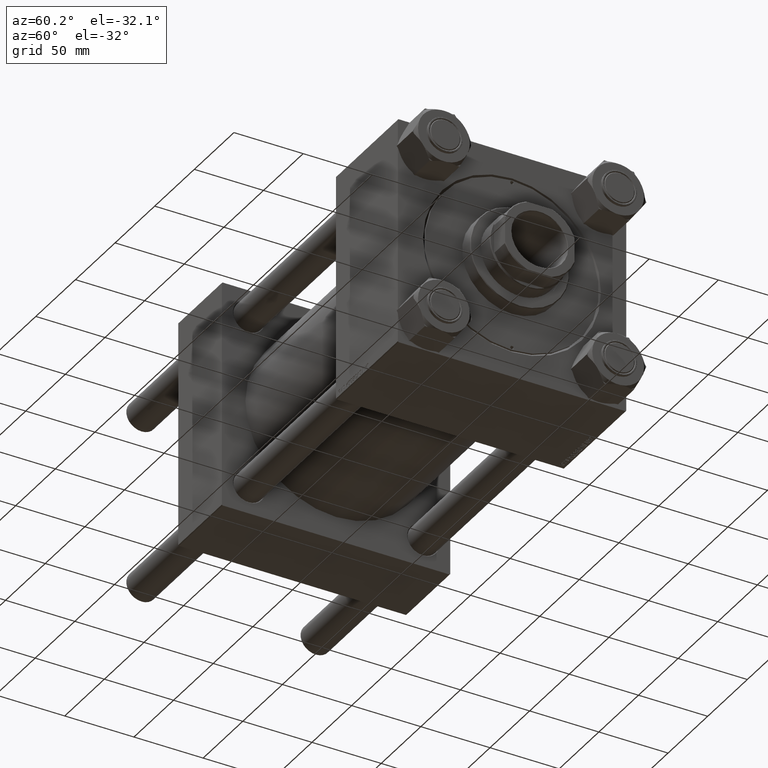
[diagram: clean part render]
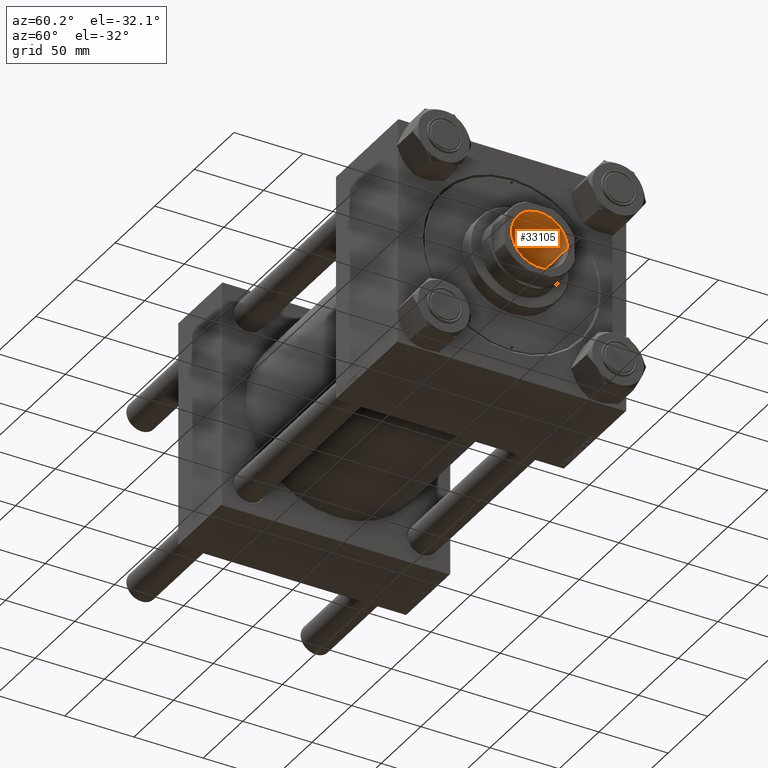
[diagram: same view with one face highlighted and labeled with its STEP entity id]
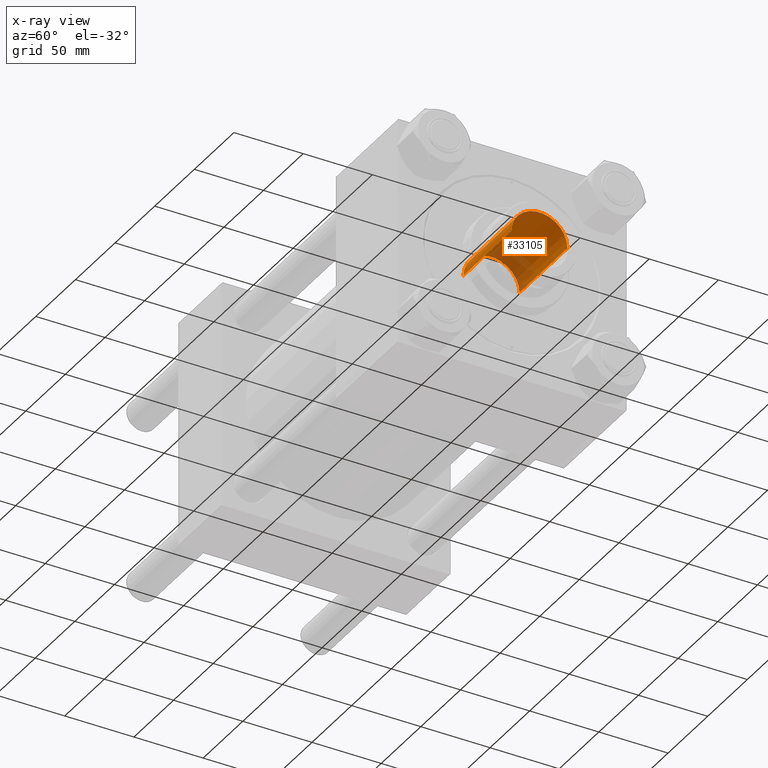
[diagram: x-ray of the same camera — body ghosted, the highlighted face saturated]
A machine part, auxiliary view. The second image highlights one B-rep face of the part: STEP entity #33105.
The next image is the same camera in x-ray: the body ghosted, the highlighted face saturated — about 25% of this face is hidden behind the body in this view.
In plain terms, the highlighted cylindrical surface (edge-blend (fillet) strip) has radius 20.25 mm, axis along (1, 0, -0).
Its self-contained STEP definition (entity closure, byte-faithful):
#1428 = DIRECTION ( 'NONE',  ( -0.000000000000000000, -0.000000000000000000, 1.000000000000000000 ) ) ;
#5154 = ORIENTED_EDGE ( 'NONE', *, *, #13098, .T. ) ;
#5911 = EDGE_CURVE ( 'NONE', #13689, #6109, #19633, .T. ) ;
#6109 = VERTEX_POINT ( 'NONE', #20379 ) ;
#9793 = ORIENTED_EDGE ( 'NONE', *, *, #10939, .T. ) ;
#10256 = CIRCLE ( 'NONE', #35520, 20.24999999999998934 ) ;
#10939 = EDGE_CURVE ( 'NONE', #28179, #6109, #49200, .T. ) ;
#13098 = EDGE_CURVE ( 'NONE', #18075, #28179, #20231, .T. ) ;
#13689 = VERTEX_POINT ( 'NONE', #36252 ) ;
#15544 = VECTOR ( 'NONE', #39035, 1000.000000000000000 ) ;
#15583 = CARTESIAN_POINT ( 'NONE',  ( 20.24999999999999289, 0.000000000000000000, 257.0000000000000000 ) ) ;
#18075 = VERTEX_POINT ( 'NONE', #38415 ) ;
#19633 = LINE ( 'NONE', #15583, #15544 ) ;
#20231 = LINE ( 'NONE', #39640, #38972 ) ;
#20379 = CARTESIAN_POINT ( 'NONE',  ( 20.24999999999999289, 0.000000000000000000, 256.6999999999999886 ) ) ;
#23013 = EDGE_LOOP ( 'NONE', ( #24227, #5154, #9793, #41263 ) ) ;
#24227 = ORIENTED_EDGE ( 'NONE', *, *, #39367, .F. ) ;
#24633 = CARTESIAN_POINT ( 'NONE',  ( 0.000000000000000000, 0.000000000000000000, 196.0000000000000000 ) ) ;
#25732 = DIRECTION ( 'NONE',  ( 1.000000000000000000, 0.000000000000000000, 0.000000000000000000 ) ) ;
#25981 = CYLINDRICAL_SURFACE ( 'NONE', #41022, 20.24999999999999289 ) ;
#28179 = VERTEX_POINT ( 'NONE', #30930 ) ;
#29570 = DIRECTION ( 'NONE',  ( -0.000000000000000000, -0.000000000000000000, 1.000000000000000000 ) ) ;
#30930 = CARTESIAN_POINT ( 'NONE',  ( -20.24999999999999289, 2.479909768273389511E-15, 256.6999999999999886 ) ) ;
#31974 = DIRECTION ( 'NONE',  ( -0.000000000000000000, -0.000000000000000000, 1.000000000000000000 ) ) ;
#33105 = ADVANCED_FACE ( 'NONE', ( #41058 ), #25981, .F. ) ;
#33723 = AXIS2_PLACEMENT_3D ( 'NONE', #38002, #33923, #49489 ) ;
#33923 = DIRECTION ( 'NONE',  ( 0.000000000000000000, 0.000000000000000000, 1.000000000000000000 ) ) ;
#35520 = AXIS2_PLACEMENT_3D ( 'NONE', #24633, #1428, #39207 ) ;
#36252 = CARTESIAN_POINT ( 'NONE',  ( 20.24999999999998934, 0.000000000000000000, 196.0000000000000000 ) ) ;
#38002 = CARTESIAN_POINT ( 'NONE',  ( 0.000000000000000000, 0.000000000000000000, 256.6999999999999886 ) ) ;
#38415 = CARTESIAN_POINT ( 'NONE',  ( -20.24999999999998934, 2.479909768273389117E-15, 196.0000000000000000 ) ) ;
#38972 = VECTOR ( 'NONE', #31974, 1000.000000000000000 ) ;
#39035 = DIRECTION ( 'NONE',  ( -0.000000000000000000, -0.000000000000000000, 1.000000000000000000 ) ) ;
#39207 = DIRECTION ( 'NONE',  ( 1.000000000000000000, 0.000000000000000000, 0.000000000000000000 ) ) ;
#39367 = EDGE_CURVE ( 'NONE', #18075, #13689, #10256, .T. ) ;
#39640 = CARTESIAN_POINT ( 'NONE',  ( -20.24999999999999289, 2.479909768273389511E-15, 257.0000000000000000 ) ) ;
#41022 = AXIS2_PLACEMENT_3D ( 'NONE', #41566, #29570, #25732 ) ;
#41058 = FACE_OUTER_BOUND ( 'NONE', #23013, .T. ) ;
#41263 = ORIENTED_EDGE ( 'NONE', *, *, #5911, .F. ) ;
#41566 = CARTESIAN_POINT ( 'NONE',  ( 0.000000000000000000, 0.000000000000000000, 257.0000000000000000 ) ) ;
#49200 = CIRCLE ( 'NONE', #33723, 20.24999999999999289 ) ;
#49489 = DIRECTION ( 'NONE',  ( 1.000000000000000000, 0.000000000000000000, 0.000000000000000000 ) ) ;